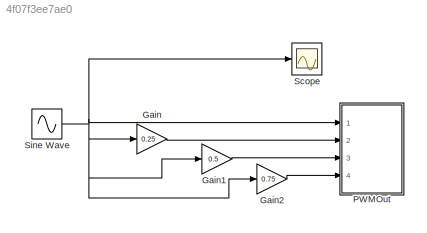
MODEL slx_4f07f3ee7ae0
KIND model
CONFIG AbsTol = auto
CONFIG FixedStep = .01
CONFIG MaxStep = auto
CONFIG MinStep = auto
CONFIG RelTol = 1e-3
CONFIG SampleTimeConstraint = Unconstrained
CONFIG Solver = ode5
CONFIG SolverMode = Auto
CONFIG SolverName = ode5
CONFIG StartTime = 0.0
CONFIG StopTime = inf
BLOCK [Gain] Gain
  Gain = 0.25
  OutDataTypeStr = Inherit: Inherit via internal rule
  ParamDataTypeStr = Inherit: Inherit via internal rule
  SaturateOnIntegerOverflow = off
BLOCK [Gain] Gain1
  Gain = 0.5
  OutDataTypeStr = Inherit: Inherit via internal rule
  ParamDataTypeStr = Inherit: Inherit via internal rule
  SaturateOnIntegerOverflow = off
BLOCK [Gain] Gain2
  Gain = 0.75
  OutDataTypeStr = Inherit: Inherit via internal rule
  ParamDataTypeStr = Inherit: Inherit via internal rule
  SaturateOnIntegerOverflow = off
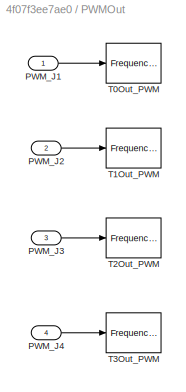
BLOCK [SubSystem] PWMOut
  Ports = [4]
  RequestExecContextInheritance = off
  Variant = off
BLOCK [Inport] PWMOut/PWM_J1
  IconDisplay = Port number
BLOCK [Inport] PWMOut/PWM_J2
  IconDisplay = Port number
  Port = 2
BLOCK [Inport] PWMOut/PWM_J3
  IconDisplay = Port number
  Port = 3
BLOCK [Inport] PWMOut/PWM_J4
  IconDisplay = Port number
  Port = 4
BLOCK [Reference] PWMOut/T0Out_PWM  REF=sldrtlib/Frequency Output
  AttributesFormatString = Humusoft\nMF644 [auto]
  Ports = [1]
  SourceBlock = sldrtlib/Frequency Output
  SourceType = Simulink Desktop Real-Time Frequency Output
BLOCK [Reference] PWMOut/T1Out_PWM  REF=sldrtlib/Frequency Output
  AttributesFormatString = Humusoft\nMF644 [auto]
  Ports = [1]
  SourceBlock = sldrtlib/Frequency Output
  SourceType = Simulink Desktop Real-Time Frequency Output
BLOCK [Reference] PWMOut/T2Out_PWM  REF=sldrtlib/Frequency Output
  AttributesFormatString = Humusoft\nMF644 [auto]
  Ports = [1]
  SourceBlock = sldrtlib/Frequency Output
  SourceType = Simulink Desktop Real-Time Frequency Output
BLOCK [Reference] PWMOut/T3Out_PWM  REF=sldrtlib/Frequency Output
  AttributesFormatString = Humusoft\nMF644 [auto]
  Ports = [1]
  SourceBlock = sldrtlib/Frequency Output
  SourceType = Simulink Desktop Real-Time Frequency Output
BLOCK [Scope] Scope
  Ports = [1]
  ScopeSpecificationString = Simulink.scopes.TimeScopeBlockCfg('CurrentConfiguration', extmgr.ConfigurationSet(extmgr.Configuration('Core','General UI',true),extmgr.Configuration('Core','Source UI',true),extmgr.Configuration('Sources','WiredSimulink',true),extmgr.Configuration('Visuals','Time Domain',true,'SerializedDisplays',{struct('MinYLimReal','0','MaxYLimReal','1','YLabelReal','','MinYLimMag','0.01472','MaxYLimMag','0.26...<+1374ch>
BLOCK [Sin] Sine Wave
  Amplitude = 0.48
  Bias = 0.5
  Frequency = 0.5
  Ports = [0, 1]
  SampleTime = 0
LINE Gain1:1 -> PWMOut:3
LINE Gain2:1 -> PWMOut:4
LINE Gain:1 -> PWMOut:2
LINE PWMOut/PWM_J1:1 -> PWMOut/T0Out_PWM:1
LINE PWMOut/PWM_J2:1 -> PWMOut/T1Out_PWM:1
LINE PWMOut/PWM_J3:1 -> PWMOut/T2Out_PWM:1
LINE PWMOut/PWM_J4:1 -> PWMOut/T3Out_PWM:1
NET Sine Wave:1 -> Gain1:1, Gain2:1, Gain:1, PWMOut:1, Scope:1
note: NET lines group one-source signal fan-out (src -> all destinations, sorted); 1:1 wires keep LINE
